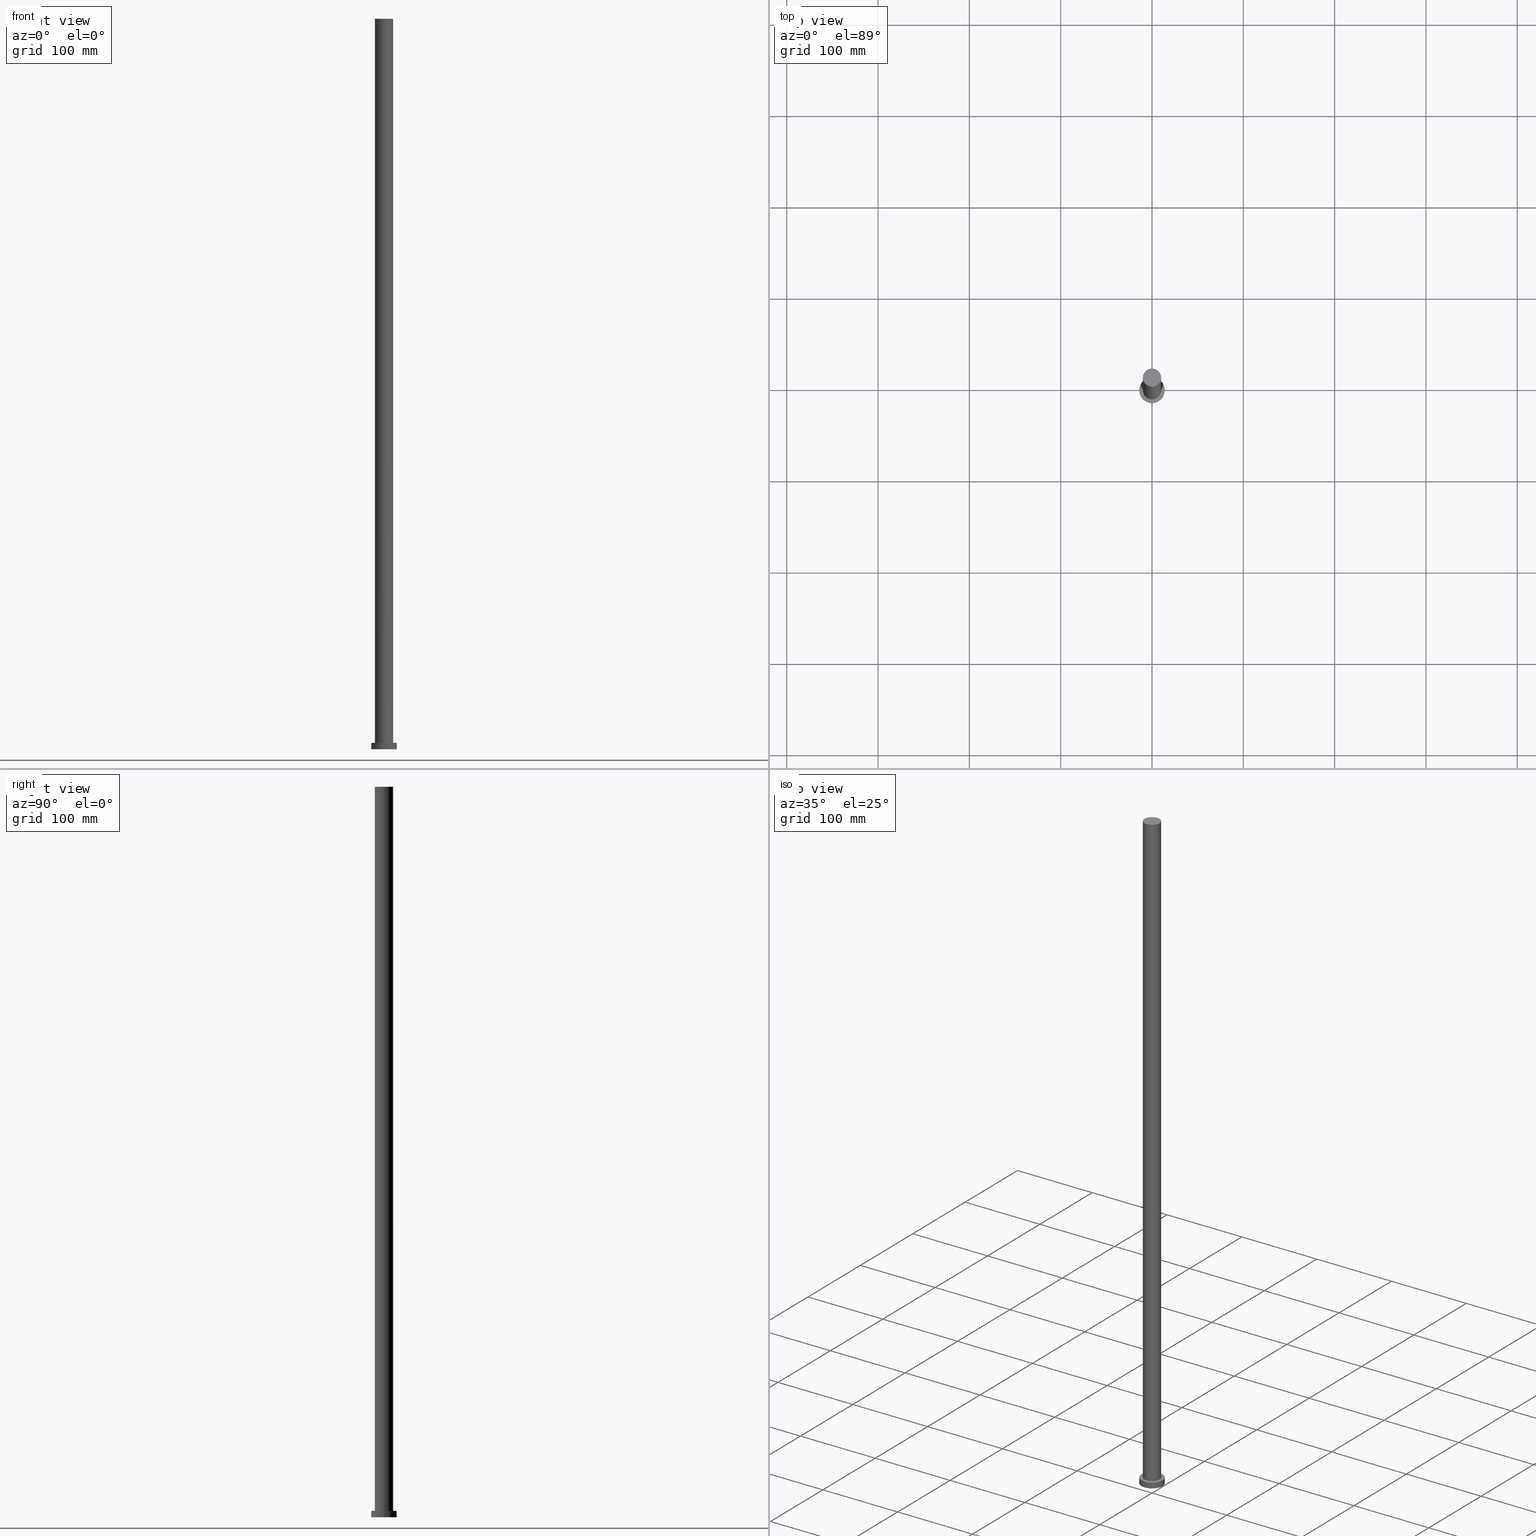
[diagram: canonical four-view strip — front | top / right | iso, engineering-drawing reading convention]
A machine part, canonical four-view strip (front | top / right | iso — engineering-drawing reading convention). The complete STEP part file that produces these views, byte-faithful:
ISO-10303-21;
HEADER;
FILE_DESCRIPTION (( 'STEP AP203' ),
    '1' );
FILE_NAME ('e012.STEP',
    '2023-02-13T08:40:08',
    ( '' ),
    ( '' ),
    'SwSTEP 2.0',
    'SolidWorks 2019',
    '' );
FILE_SCHEMA (( 'CONFIG_CONTROL_DESIGN' ));
ENDSEC;

DATA;
#1 = ADVANCED_FACE ( 'NONE', ( #128 ), #144, .T. ) ;
#2 = EDGE_LOOP ( 'NONE', ( #242, #83, #206, #212 ) ) ;
#3 = CIRCLE ( 'NONE', #72, 14.00000000000000000 ) ;
#4 = APPROVAL_STATUS ( 'not_yet_approved' ) ;
#5 = ORIENTED_EDGE ( 'NONE', *, *, #16, .F. ) ;
#6 = VERTEX_POINT ( 'NONE', #27 ) ;
#7 = CALENDAR_DATE ( 2023, 13, 2 ) ;
#8 = CC_DESIGN_APPROVAL ( #164, ( #15 ) ) ;
#9 = DIRECTION ( 'NONE',  ( 0.000000000000000000, 0.000000000000000000, 1.000000000000000000 ) ) ;
#10 = CC_DESIGN_PERSON_AND_ORGANIZATION_ASSIGNMENT ( #201, #80, ( #97 ) ) ;
#11 = DIRECTION ( 'NONE',  ( 1.000000000000000000, 0.000000000000000000, 0.000000000000000000 ) ) ;
#12 = PLANE ( 'NONE',  #193 ) ;
#13 = VECTOR ( 'NONE', #153, 1000.000000000000000 ) ;
#14 = FACE_OUTER_BOUND ( 'NONE', #85, .T. ) ;
#15 = SECURITY_CLASSIFICATION ( '', '', #30 ) ;
#16 = EDGE_CURVE ( 'NONE', #229, #42, #160, .T. ) ;
#17 = FACE_BOUND ( 'NONE', #68, .T. ) ;
#18 = CARTESIAN_POINT ( 'NONE',  ( 0.000000000000000000, 0.000000000000000000, 0.000000000000000000 ) ) ;
#19 = AXIS2_PLACEMENT_3D ( 'NONE', #224, #209, #45 ) ;
#20 = CALENDAR_DATE ( 2023, 13, 2 ) ;
#21 = CC_DESIGN_PERSON_AND_ORGANIZATION_ASSIGNMENT ( #228, #47, ( #51 ) ) ;
#22 = CC_DESIGN_APPROVAL ( #84, ( #124 ) ) ;
#23 = COORDINATED_UNIVERSAL_TIME_OFFSET ( 1, 0, .AHEAD. ) ;
#24 = COORDINATED_UNIVERSAL_TIME_OFFSET ( 1, 0, .AHEAD. ) ;
#25 = ORIENTED_EDGE ( 'NONE', *, *, #158, .T. ) ;
#26 = APPROVAL_DATE_TIME ( #208, #77 ) ;
#27 = CARTESIAN_POINT ( 'NONE',  ( -14.00000000000000000, 0.000000000000000000, 0.000000000000000000 ) ) ;
#28 = SHAPE_DEFINITION_REPRESENTATION ( #108, #98 ) ;
#29 = EDGE_LOOP ( 'NONE', ( #87, #25 ) ) ;
#30 = SECURITY_CLASSIFICATION_LEVEL ( 'unclassified' ) ;
#31 = ORIENTED_EDGE ( 'NONE', *, *, #89, .T. ) ;
#32 = DIRECTION ( 'NONE',  ( 0.000000000000000000, 0.000000000000000000, 1.000000000000000000 ) ) ;
#33 = CARTESIAN_POINT ( 'NONE',  ( 0.000000000000000000, 0.000000000000000000, 7.000000000000000000 ) ) ;
#34 = DIRECTION ( 'NONE',  ( -0.000000000000000000, -0.000000000000000000, -1.000000000000000000 ) ) ;
#35 = DIRECTION ( 'NONE',  ( 1.000000000000000000, 0.000000000000000000, 0.000000000000000000 ) ) ;
#36 = CYLINDRICAL_SURFACE ( 'NONE', #126, 10.00000000000000000 ) ;
#37 = AXIS2_PLACEMENT_3D ( 'NONE', #134, #95, #250 ) ;
#38 = DIRECTION ( 'NONE',  ( 0.000000000000000000, 0.000000000000000000, 1.000000000000000000 ) ) ;
#39 = APPROVAL_STATUS ( 'not_yet_approved' ) ;
#40 = AXIS2_PLACEMENT_3D ( 'NONE', #18, #38, #121 ) ;
#41 = PERSON ( 'NEUR�EN�', 'NEUR�EN�', 'NEUR�EN�', ('NEUR�EN�'), ('NEUR�EN�'), ('NEUR�EN�') ) ;
#42 = VERTEX_POINT ( 'NONE', #50 ) ;
#43 = ADVANCED_FACE ( 'NONE', ( #75 ), #36, .T. ) ;
#44 = COORDINATED_UNIVERSAL_TIME_OFFSET ( 1, 0, .AHEAD. ) ;
#45 = DIRECTION ( 'NONE',  ( 1.000000000000000000, 0.000000000000000000, -0.000000000000000000 ) ) ;
#46 = VERTEX_POINT ( 'NONE', #174 ) ;
#47 = PERSON_AND_ORGANIZATION_ROLE ( 'design_supplier' ) ;
#48 = PRODUCT_RELATED_PRODUCT_CATEGORY ( 'detail', '', ( #97 ) ) ;
#49 = PERSON_AND_ORGANIZATION ( #41, #255 ) ;
#50 = CARTESIAN_POINT ( 'NONE',  ( -14.00000000000000000, 0.000000000000000000, 7.000000000000000000 ) ) ;
#51 = PRODUCT_DEFINITION_FORMATION_WITH_SPECIFIED_SOURCE ( 'LIBOVOLN�', '', #97, .NOT_KNOWN. ) ;
#52 = FACE_OUTER_BOUND ( 'NONE', #90, .T. ) ;
#53 = EDGE_CURVE ( 'NONE', #42, #6, #54, .T. ) ;
#54 = LINE ( 'NONE', #149, #13 ) ;
#55 = CARTESIAN_POINT ( 'NONE',  ( 0.000000000000000000, 0.000000000000000000, 7.000000000000000000 ) ) ;
#56 = UNCERTAINTY_MEASURE_WITH_UNIT (LENGTH_MEASURE( 1.000000000000000082E-05 ), #202, 'distance_accuracy_value', 'NONE');
#57 = CARTESIAN_POINT ( 'NONE',  ( 0.000000000000000000, 0.000000000000000000, 800.0000000000000000 ) ) ;
#58 = CC_DESIGN_APPROVAL ( #77, ( #51 ) ) ;
#59 = EDGE_CURVE ( 'NONE', #165, #240, #145, .T. ) ;
#60 =( NAMED_UNIT ( * ) PLANE_ANGLE_UNIT ( ) SI_UNIT ( $, .RADIAN. ) );
#61 = AXIS2_PLACEMENT_3D ( 'NONE', #249, #73, #152 ) ;
#62 = EDGE_CURVE ( 'NONE', #46, #188, #200, .T. ) ;
#63 = APPLICATION_PROTOCOL_DEFINITION ( 'international standard', 'config_control_design', 1994, #186 ) ;
#64 = ORIENTED_EDGE ( 'NONE', *, *, #16, .T. ) ;
#65 = AXIS2_PLACEMENT_3D ( 'NONE', #213, #195, #11 ) ;
#66 = ORIENTED_EDGE ( 'NONE', *, *, #248, .T. ) ;
#67 = APPROVAL_STATUS ( 'not_yet_approved' ) ;
#68 = EDGE_LOOP ( 'NONE', ( #223, #163 ) ) ;
#69 = EDGE_LOOP ( 'NONE', ( #159, #31, #146, #110 ) ) ;
#70 = CARTESIAN_POINT ( 'NONE',  ( 0.000000000000000000, 0.000000000000000000, 7.000000000000000000 ) ) ;
#71 = CARTESIAN_POINT ( 'NONE',  ( 14.00000000000000000, 1.714505518806294638E-15, 7.000000000000000000 ) ) ;
#72 = AXIS2_PLACEMENT_3D ( 'NONE', #232, #96, #119 ) ;
#73 = DIRECTION ( 'NONE',  ( -0.000000000000000000, -0.000000000000000000, -1.000000000000000000 ) ) ;
#74 = DIRECTION ( 'NONE',  ( 1.000000000000000000, 0.000000000000000000, 0.000000000000000000 ) ) ;
#75 = FACE_OUTER_BOUND ( 'NONE', #210, .T. ) ;
#76 = AXIS2_PLACEMENT_3D ( 'NONE', #219, #117, #199 ) ;
#77 = APPROVAL ( #67, 'NEUR�EN�' ) ;
#78 = CARTESIAN_POINT ( 'NONE',  ( 10.00000000000000000, 1.224646799147353256E-15, 800.0000000000000000 ) ) ;
#79 = LOCAL_TIME ( 9, 40, 8.000000000000000000, #44 ) ;
#80 = PERSON_AND_ORGANIZATION_ROLE ( 'design_owner' ) ;
#81 = CIRCLE ( 'NONE', #184, 10.00000000000000000 ) ;
#82 = DIRECTION ( 'NONE',  ( 0.000000000000000000, 0.000000000000000000, 1.000000000000000000 ) ) ;
#83 = ORIENTED_EDGE ( 'NONE', *, *, #118, .F. ) ;
#84 = APPROVAL ( #4, 'NEUR�EN�' ) ;
#85 = EDGE_LOOP ( 'NONE', ( #161, #64 ) ) ;
#86 = APPROVAL_ROLE ( '' ) ;
#87 = ORIENTED_EDGE ( 'NONE', *, *, #59, .T. ) ;
#88 = DATE_AND_TIME ( #20, #173 ) ;
#89 = EDGE_CURVE ( 'NONE', #240, #46, #151, .T. ) ;
#90 = EDGE_LOOP ( 'NONE', ( #5, #245, #104, #107 ) ) ;
#91 = FACE_OUTER_BOUND ( 'NONE', #183, .T. ) ;
#92 = DIRECTION ( 'NONE',  ( -1.000000000000000000, 0.000000000000000000, 0.000000000000000000 ) ) ;
#93 = FACE_OUTER_BOUND ( 'NONE', #69, .T. ) ;
#94 = DIRECTION ( 'NONE',  ( -0.000000000000000000, -0.000000000000000000, -1.000000000000000000 ) ) ;
#95 = DIRECTION ( 'NONE',  ( 0.000000000000000000, 0.000000000000000000, 1.000000000000000000 ) ) ;
#96 = DIRECTION ( 'NONE',  ( 0.000000000000000000, 0.000000000000000000, 1.000000000000000000 ) ) ;
#97 = PRODUCT ( 'e012', 'e012', '', ( #181 ) ) ;
#98 = ADVANCED_BREP_SHAPE_REPRESENTATION ( 'e012', ( #125, #40 ), #100 ) ;
#99 = APPLICATION_PROTOCOL_DEFINITION ( 'international standard', 'config_control_design', 1994, #243 ) ;
#100 =( GEOMETRIC_REPRESENTATION_CONTEXT ( 3 ) GLOBAL_UNCERTAINTY_ASSIGNED_CONTEXT ( ( #56 ) ) GLOBAL_UNIT_ASSIGNED_CONTEXT ( ( #202, #60, #253 ) ) REPRESENTATION_CONTEXT ( 'NONE', 'WORKASPACE' ) );
#101 = ADVANCED_FACE ( 'NONE', ( #17, #14 ), #114, .T. ) ;
#102 = DATE_TIME_ROLE ( 'creation_date' ) ;
#103 = CIRCLE ( 'NONE', #76, 14.00000000000000000 ) ;
#104 = ORIENTED_EDGE ( 'NONE', *, *, #179, .T. ) ;
#105 = LOCAL_TIME ( 9, 40, 8.000000000000000000, #23 ) ;
#106 = PERSON_AND_ORGANIZATION ( #41, #255 ) ;
#107 = ORIENTED_EDGE ( 'NONE', *, *, #53, .F. ) ;
#108 = PRODUCT_DEFINITION_SHAPE ( 'NONE', 'NONE',  #124 ) ;
#109 = COORDINATED_UNIVERSAL_TIME_OFFSET ( 1, 0, .AHEAD. ) ;
#110 = ORIENTED_EDGE ( 'NONE', *, *, #150, .F. ) ;
#111 = PERSON_AND_ORGANIZATION ( #41, #255 ) ;
#112 = VERTEX_POINT ( 'NONE', #216 ) ;
#113 = CIRCLE ( 'NONE', #65, 10.00000000000000000 ) ;
#114 = PLANE ( 'NONE',  #37 ) ;
#115 = DIRECTION ( 'NONE',  ( -0.000000000000000000, -0.000000000000000000, -1.000000000000000000 ) ) ;
#116 = DIRECTION ( 'NONE',  ( -0.000000000000000000, -0.000000000000000000, -1.000000000000000000 ) ) ;
#117 = DIRECTION ( 'NONE',  ( 0.000000000000000000, 0.000000000000000000, 1.000000000000000000 ) ) ;
#118 = EDGE_CURVE ( 'NONE', #42, #229, #103, .T. ) ;
#119 = DIRECTION ( 'NONE',  ( 1.000000000000000000, 0.000000000000000000, 0.000000000000000000 ) ) ;
#120 = VECTOR ( 'NONE', #94, 1000.000000000000000 ) ;
#121 = DIRECTION ( 'NONE',  ( 1.000000000000000000, 0.000000000000000000, 0.000000000000000000 ) ) ;
#122 = DIRECTION ( 'NONE',  ( 1.000000000000000000, 0.000000000000000000, 0.000000000000000000 ) ) ;
#123 = APPROVAL_ROLE ( '' ) ;
#124 = PRODUCT_DEFINITION ( 'NEZN�M�', '', #51, #172 ) ;
#125 = MANIFOLD_SOLID_BREP ( 'P�idat vysunut�m3', #225 ) ;
#126 = AXIS2_PLACEMENT_3D ( 'NONE', #57, #116, #154 ) ;
#127 = CALENDAR_DATE ( 2023, 13, 2 ) ;
#128 = FACE_OUTER_BOUND ( 'NONE', #29, .T. ) ;
#129 = DATE_TIME_ROLE ( 'classification_date' ) ;
#130 = PERSON_AND_ORGANIZATION_ROLE ( 'classification_officer' ) ;
#131 = ORIENTED_EDGE ( 'NONE', *, *, #150, .T. ) ;
#132 = DIRECTION ( 'NONE',  ( -0.000000000000000000, -0.000000000000000000, -1.000000000000000000 ) ) ;
#133 = ADVANCED_FACE ( 'NONE', ( #91 ), #12, .F. ) ;
#134 = CARTESIAN_POINT ( 'NONE',  ( 0.000000000000000000, 0.000000000000000000, 7.000000000000000000 ) ) ;
#135 = CC_DESIGN_DATE_AND_TIME_ASSIGNMENT ( #222, #102, ( #124 ) ) ;
#136 = DIRECTION ( 'NONE',  ( 0.000000000000000000, 0.000000000000000000, 1.000000000000000000 ) ) ;
#137 = CARTESIAN_POINT ( 'NONE',  ( 0.000000000000000000, 0.000000000000000000, 7.000000000000000000 ) ) ;
#138 = ADVANCED_FACE ( 'NONE', ( #197 ), #251, .T. ) ;
#139 = DIRECTION ( 'NONE',  ( 0.000000000000000000, 0.000000000000000000, 1.000000000000000000 ) ) ;
#140 = CARTESIAN_POINT ( 'NONE',  ( 0.000000000000000000, 0.000000000000000000, 0.000000000000000000 ) ) ;
#141 = CC_DESIGN_PERSON_AND_ORGANIZATION_ASSIGNMENT ( #241, #143, ( #124 ) ) ;
#142 = ORIENTED_EDGE ( 'NONE', *, *, #59, .F. ) ;
#143 = PERSON_AND_ORGANIZATION_ROLE ( 'creator' ) ;
#144 = PLANE ( 'NONE',  #19 ) ;
#145 = CIRCLE ( 'NONE', #155, 10.00000000000000000 ) ;
#146 = ORIENTED_EDGE ( 'NONE', *, *, #62, .T. ) ;
#147 = APPROVAL_DATE_TIME ( #88, #164 ) ;
#148 = AXIS2_PLACEMENT_3D ( 'NONE', #33, #115, #196 ) ;
#149 = CARTESIAN_POINT ( 'NONE',  ( -14.00000000000000000, 0.000000000000000000, 7.000000000000000000 ) ) ;
#150 = EDGE_CURVE ( 'NONE', #165, #188, #194, .T. ) ;
#151 = LINE ( 'NONE', #235, #120 ) ;
#152 = DIRECTION ( 'NONE',  ( -1.000000000000000000, 0.000000000000000000, 0.000000000000000000 ) ) ;
#153 = DIRECTION ( 'NONE',  ( -0.000000000000000000, -0.000000000000000000, -1.000000000000000000 ) ) ;
#154 = DIRECTION ( 'NONE',  ( -1.000000000000000000, 0.000000000000000000, 0.000000000000000000 ) ) ;
#155 = AXIS2_PLACEMENT_3D ( 'NONE', #230, #32, #233 ) ;
#156 = CC_DESIGN_DATE_AND_TIME_ASSIGNMENT ( #189, #129, ( #15 ) ) ;
#157 = VECTOR ( 'NONE', #231, 1000.000000000000000 ) ;
#158 = EDGE_CURVE ( 'NONE', #240, #165, #113, .T. ) ;
#159 = ORIENTED_EDGE ( 'NONE', *, *, #158, .F. ) ;
#160 = CIRCLE ( 'NONE', #207, 14.00000000000000000 ) ;
#161 = ORIENTED_EDGE ( 'NONE', *, *, #118, .T. ) ;
#162 = APPROVAL_DATE_TIME ( #203, #84 ) ;
#163 = ORIENTED_EDGE ( 'NONE', *, *, #62, .F. ) ;
#164 = APPROVAL ( #39, 'NEUR�EN�' ) ;
#165 = VERTEX_POINT ( 'NONE', #169 ) ;
#166 = APPROVAL_PERSON_ORGANIZATION ( #205, #77, #86 ) ;
#167 = EDGE_CURVE ( 'NONE', #229, #112, #247, .T. ) ;
#168 = CARTESIAN_POINT ( 'NONE',  ( -10.00000000000000000, 0.000000000000000000, 800.0000000000000000 ) ) ;
#169 = CARTESIAN_POINT ( 'NONE',  ( -10.00000000000000000, 0.000000000000000000, 800.0000000000000000 ) ) ;
#170 = CYLINDRICAL_SURFACE ( 'NONE', #61, 10.00000000000000000 ) ;
#171 = ADVANCED_FACE ( 'NONE', ( #52 ), #214, .T. ) ;
#172 = DESIGN_CONTEXT ( 'detailed design', #186, 'design' ) ;
#173 = LOCAL_TIME ( 9, 40, 8.000000000000000000, #109 ) ;
#174 = CARTESIAN_POINT ( 'NONE',  ( 10.00000000000000000, 1.224646799147353256E-15, 7.000000000000000000 ) ) ;
#175 = DIRECTION ( 'NONE',  ( 1.000000000000000000, 0.000000000000000000, -0.000000000000000000 ) ) ;
#176 = APPROVAL_PERSON_ORGANIZATION ( #239, #84, #123 ) ;
#177 = ADVANCED_FACE ( 'NONE', ( #93 ), #170, .T. ) ;
#178 = CARTESIAN_POINT ( 'NONE',  ( 0.000000000000000000, 0.000000000000000000, 7.000000000000000000 ) ) ;
#179 = EDGE_CURVE ( 'NONE', #112, #6, #3, .T. ) ;
#180 = CIRCLE ( 'NONE', #252, 14.00000000000000000 ) ;
#181 = MECHANICAL_CONTEXT ( 'NONE', #243, 'mechanical' ) ;
#182 = CALENDAR_DATE ( 2023, 13, 2 ) ;
#183 = EDGE_LOOP ( 'NONE', ( #190, #221 ) ) ;
#184 = AXIS2_PLACEMENT_3D ( 'NONE', #178, #139, #254 ) ;
#185 = COORDINATED_UNIVERSAL_TIME_OFFSET ( 1, 0, .AHEAD. ) ;
#186 = APPLICATION_CONTEXT ( 'configuration controlled 3d designs of mechanical parts and assemblies' ) ;
#187 = CALENDAR_DATE ( 2023, 13, 2 ) ;
#188 = VERTEX_POINT ( 'NONE', #238 ) ;
#189 = DATE_AND_TIME ( #7, #227 ) ;
#190 = ORIENTED_EDGE ( 'NONE', *, *, #192, .F. ) ;
#191 = APPROVAL_ROLE ( '' ) ;
#192 = EDGE_CURVE ( 'NONE', #6, #112, #180, .T. ) ;
#193 = AXIS2_PLACEMENT_3D ( 'NONE', #246, #9, #175 ) ;
#194 = LINE ( 'NONE', #168, #234 ) ;
#195 = DIRECTION ( 'NONE',  ( 0.000000000000000000, 0.000000000000000000, 1.000000000000000000 ) ) ;
#196 = DIRECTION ( 'NONE',  ( -1.000000000000000000, 0.000000000000000000, 0.000000000000000000 ) ) ;
#197 = FACE_OUTER_BOUND ( 'NONE', #2, .T. ) ;
#198 = LOCAL_TIME ( 9, 40, 8.000000000000000000, #24 ) ;
#199 = DIRECTION ( 'NONE',  ( 1.000000000000000000, 0.000000000000000000, 0.000000000000000000 ) ) ;
#200 = CIRCLE ( 'NONE', #217, 10.00000000000000000 ) ;
#201 = PERSON_AND_ORGANIZATION ( #41, #255 ) ;
#202 =( LENGTH_UNIT ( ) NAMED_UNIT ( * ) SI_UNIT ( .MILLI., .METRE. ) );
#203 = DATE_AND_TIME ( #182, #105 ) ;
#204 = CC_DESIGN_PERSON_AND_ORGANIZATION_ASSIGNMENT ( #106, #211, ( #51 ) ) ;
#205 = PERSON_AND_ORGANIZATION ( #41, #255 ) ;
#206 = ORIENTED_EDGE ( 'NONE', *, *, #53, .T. ) ;
#207 = AXIS2_PLACEMENT_3D ( 'NONE', #70, #218, #74 ) ;
#208 = DATE_AND_TIME ( #127, #79 ) ;
#209 = DIRECTION ( 'NONE',  ( 0.000000000000000000, 0.000000000000000000, 1.000000000000000000 ) ) ;
#210 = EDGE_LOOP ( 'NONE', ( #226, #142, #131, #66 ) ) ;
#211 = PERSON_AND_ORGANIZATION_ROLE ( 'creator' ) ;
#212 = ORIENTED_EDGE ( 'NONE', *, *, #192, .T. ) ;
#213 = CARTESIAN_POINT ( 'NONE',  ( 0.000000000000000000, 0.000000000000000000, 800.0000000000000000 ) ) ;
#214 = CYLINDRICAL_SURFACE ( 'NONE', #148, 14.00000000000000000 ) ;
#215 = CC_DESIGN_PERSON_AND_ORGANIZATION_ASSIGNMENT ( #111, #130, ( #15 ) ) ;
#216 = CARTESIAN_POINT ( 'NONE',  ( 14.00000000000000000, 1.714505518806294638E-15, 0.000000000000000000 ) ) ;
#217 = AXIS2_PLACEMENT_3D ( 'NONE', #55, #136, #35 ) ;
#218 = DIRECTION ( 'NONE',  ( 0.000000000000000000, 0.000000000000000000, 1.000000000000000000 ) ) ;
#219 = CARTESIAN_POINT ( 'NONE',  ( 0.000000000000000000, 0.000000000000000000, 7.000000000000000000 ) ) ;
#220 = AXIS2_PLACEMENT_3D ( 'NONE', #137, #34, #92 ) ;
#221 = ORIENTED_EDGE ( 'NONE', *, *, #179, .F. ) ;
#222 = DATE_AND_TIME ( #187, #198 ) ;
#223 = ORIENTED_EDGE ( 'NONE', *, *, #248, .F. ) ;
#224 = CARTESIAN_POINT ( 'NONE',  ( 0.000000000000000000, 0.000000000000000000, 800.0000000000000000 ) ) ;
#225 = CLOSED_SHELL ( 'NONE', ( #177, #171, #138, #101, #133, #43, #1 ) ) ;
#226 = ORIENTED_EDGE ( 'NONE', *, *, #89, .F. ) ;
#227 = LOCAL_TIME ( 9, 40, 8.000000000000000000, #185 ) ;
#228 = PERSON_AND_ORGANIZATION ( #41, #255 ) ;
#229 = VERTEX_POINT ( 'NONE', #236 ) ;
#230 = CARTESIAN_POINT ( 'NONE',  ( 0.000000000000000000, 0.000000000000000000, 800.0000000000000000 ) ) ;
#231 = DIRECTION ( 'NONE',  ( -0.000000000000000000, -0.000000000000000000, -1.000000000000000000 ) ) ;
#232 = CARTESIAN_POINT ( 'NONE',  ( 0.000000000000000000, 0.000000000000000000, 0.000000000000000000 ) ) ;
#233 = DIRECTION ( 'NONE',  ( 1.000000000000000000, 0.000000000000000000, 0.000000000000000000 ) ) ;
#234 = VECTOR ( 'NONE', #132, 1000.000000000000000 ) ;
#235 = CARTESIAN_POINT ( 'NONE',  ( 10.00000000000000000, 1.224646799147353256E-15, 800.0000000000000000 ) ) ;
#236 = CARTESIAN_POINT ( 'NONE',  ( 14.00000000000000000, 1.714505518806294638E-15, 7.000000000000000000 ) ) ;
#237 = CC_DESIGN_SECURITY_CLASSIFICATION ( #15, ( #51 ) ) ;
#238 = CARTESIAN_POINT ( 'NONE',  ( -10.00000000000000000, 0.000000000000000000, 7.000000000000000000 ) ) ;
#239 = PERSON_AND_ORGANIZATION ( #41, #255 ) ;
#240 = VERTEX_POINT ( 'NONE', #78 ) ;
#241 = PERSON_AND_ORGANIZATION ( #41, #255 ) ;
#242 = ORIENTED_EDGE ( 'NONE', *, *, #167, .F. ) ;
#243 = APPLICATION_CONTEXT ( 'configuration controlled 3d designs of mechanical parts and assemblies' ) ;
#244 = APPROVAL_PERSON_ORGANIZATION ( #49, #164, #191 ) ;
#245 = ORIENTED_EDGE ( 'NONE', *, *, #167, .T. ) ;
#246 = CARTESIAN_POINT ( 'NONE',  ( 0.000000000000000000, 0.000000000000000000, 0.000000000000000000 ) ) ;
#247 = LINE ( 'NONE', #71, #157 ) ;
#248 = EDGE_CURVE ( 'NONE', #188, #46, #81, .T. ) ;
#249 = CARTESIAN_POINT ( 'NONE',  ( 0.000000000000000000, 0.000000000000000000, 800.0000000000000000 ) ) ;
#250 = DIRECTION ( 'NONE',  ( 1.000000000000000000, 0.000000000000000000, -0.000000000000000000 ) ) ;
#251 = CYLINDRICAL_SURFACE ( 'NONE', #220, 14.00000000000000000 ) ;
#252 = AXIS2_PLACEMENT_3D ( 'NONE', #140, #82, #122 ) ;
#253 =( NAMED_UNIT ( * ) SI_UNIT ( $, .STERADIAN. ) SOLID_ANGLE_UNIT ( ) );
#254 = DIRECTION ( 'NONE',  ( 1.000000000000000000, 0.000000000000000000, 0.000000000000000000 ) ) ;
#255 = ORGANIZATION ( 'NEUR�EN�', 'NEUR�EN�', '' ) ;
ENDSEC;
END-ISO-10303-21;
